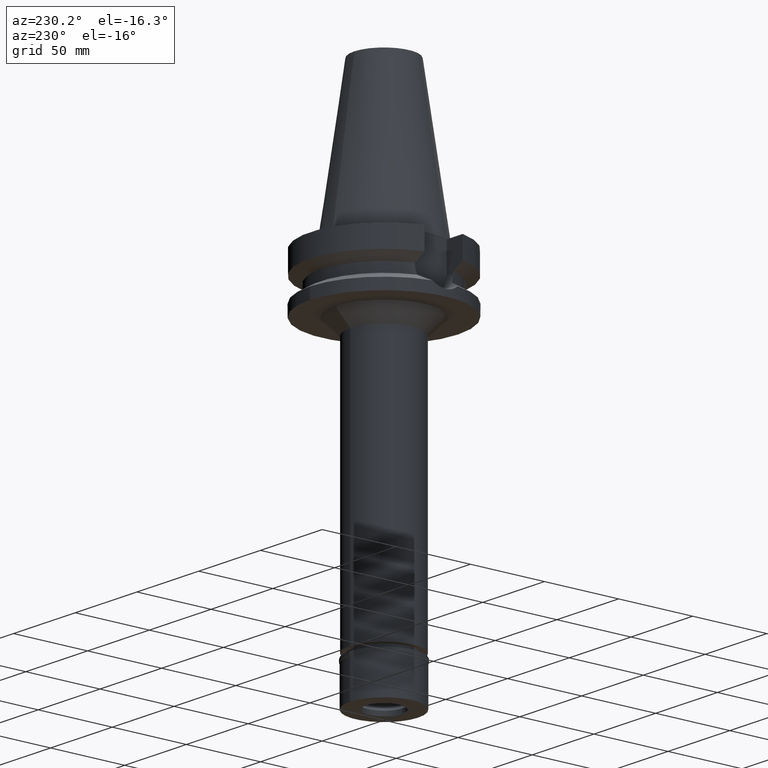
[diagram: clean part render]
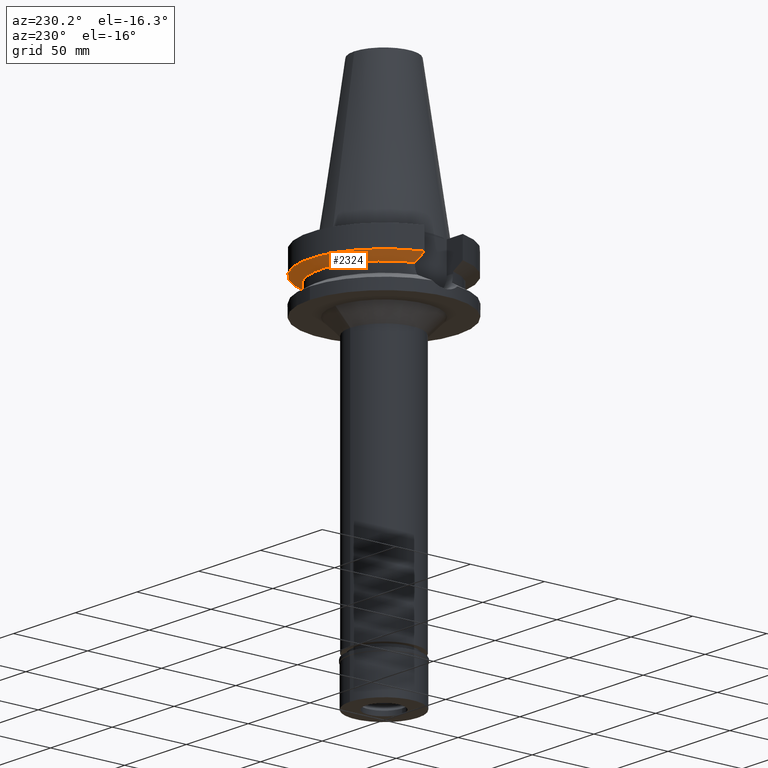
[diagram: same view with one face highlighted and labeled with its STEP entity id]
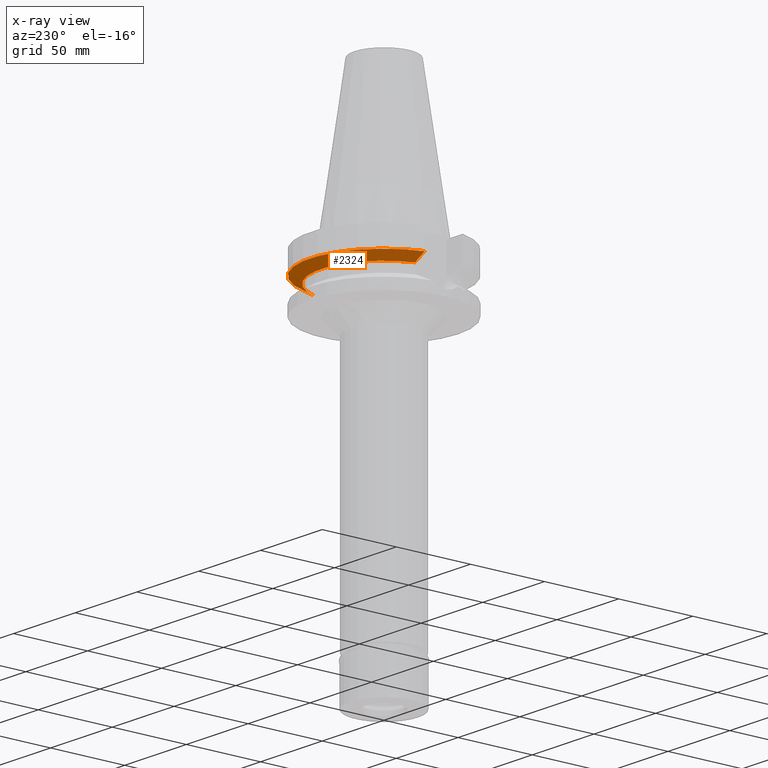
[diagram: x-ray of the same camera — body ghosted, the highlighted face saturated]
A machine part, auxiliary view. The second image highlights one B-rep face of the part: STEP entity #2324.
The next image is the same camera in x-ray: the body ghosted, the highlighted face saturated — about 0% of this face is hidden behind the body in this view.
In plain terms, the highlighted conical surface has half-angle 60 deg.
Its self-contained STEP definition (entity closure, byte-faithful):
#12 = EDGE_CURVE ( 'NONE', #2916, #1048, #2536, .T. ) ;
#53 = CARTESIAN_POINT ( 'NONE',  ( 0.0000000000000000000, 1.006319759053999930E-14, -15.66269223573000069 ) ) ;
#129 = ORIENTED_EDGE ( 'NONE', *, *, #12, .T. ) ;
#284 = VERTEX_POINT ( 'NONE', #1277 ) ;
#343 = DIRECTION ( 'NONE',  ( 0.0000000000000000000, 1.000000000000000000, 0.0000000000000000000 ) ) ;
#349 = AXIS2_PLACEMENT_3D ( 'NONE', #1258, #1748, #1698 ) ;
#403 = CARTESIAN_POINT ( 'NONE',  ( 48.32056912815000516, 12.85000385725999905, -15.66265768273000170 ) ) ;
#405 = CIRCLE ( 'NONE', #3011, 50.00000000000000000 ) ;
#492 = CARTESIAN_POINT ( 'NONE',  ( -45.51180301983914944, 12.85000771239541351, -17.22986482407244324 ) ) ;
#569 = ORIENTED_EDGE ( 'NONE', *, *, #717, .F. ) ;
#602 = EDGE_CURVE ( 'NONE', #1067, #284, #2184, .T. ) ;
#658 = CARTESIAN_POINT ( 'NONE',  ( 0.0000000000000000000, 1.006319759053999930E-14, -17.82775574519000017 ) ) ;
#677 = CARTESIAN_POINT ( 'NONE',  ( -42.90863232185251519, 12.84999314245379587, -18.67324368411542324 ) ) ;
#717 = EDGE_CURVE ( 'NONE', #2916, #284, #405, .T. ) ;
#760 = ORIENTED_EDGE ( 'NONE', *, *, #602, .T. ) ;
#790 = DIRECTION ( 'NONE',  ( 0.0000000000000000000, 0.0000000000000000000, 1.000000000000000000 ) ) ;
#1019 = DIRECTION ( 'NONE',  ( 0.0000000000000000000, 1.000000000000000000, 0.0000000000000000000 ) ) ;
#1048 = VERTEX_POINT ( 'NONE', #2321 ) ;
#1067 = VERTEX_POINT ( 'NONE', #2833 ) ;
#1162 = CARTESIAN_POINT ( 'NONE',  ( 42.90862489466591256, 12.84999313797018594, -18.67324780284967645 ) ) ;
#1180 = CARTESIAN_POINT ( 'NONE',  ( 45.51179901593025079, 12.85000770987397090, -17.22986705846993161 ) ) ;
#1258 = CARTESIAN_POINT ( 'NONE',  ( 0.0000000000000000000, 1.006319759053999930E-14, -19.99281925464999787 ) ) ;
#1277 = CARTESIAN_POINT ( 'NONE',  ( -48.32056912780999625, 12.85000385852000093, -15.66265767138999898 ) ) ;
#1352 = DIRECTION ( 'NONE',  ( 0.0000000000000000000, 0.0000000000000000000, 1.000000000000000000 ) ) ;
#1384 = FACE_OUTER_BOUND ( 'NONE', #1759, .T. ) ;
#1423 = CARTESIAN_POINT ( 'NONE',  ( -40.51083188481999997, 12.84999999999999964, -19.99281925464999787 ) ) ;
#1698 = DIRECTION ( 'NONE',  ( -0.9531960443486575674, 0.3023529411764863672, 0.0000000000000000000 ) ) ;
#1748 = DIRECTION ( 'NONE',  ( 0.0000000000000000000, 0.0000000000000000000, -1.000000000000000000 ) ) ;
#1759 = EDGE_LOOP ( 'NONE', ( #569, #129, #1821, #760 ) ) ;
#1768 = EDGE_CURVE ( 'NONE', #1067, #1048, #2038, .T. ) ;
#1821 = ORIENTED_EDGE ( 'NONE', *, *, #1768, .F. ) ;
#1926 = CARTESIAN_POINT ( 'NONE',  ( 40.51083297203000200, 12.84999657246999938, -19.99284555851999912 ) ) ;
#2038 = CIRCLE ( 'NONE', #349, 42.50000000000002132 ) ;
#2138 = CARTESIAN_POINT ( 'NONE',  ( 48.32056912815000516, 12.85000385725999905, -15.66265768273000170 ) ) ;
#2184 = B_SPLINE_CURVE_WITH_KNOTS ( 'NONE', 3,
 ( #1423, #677, #492, #2670 ),
 .UNSPECIFIED., .F., .F.,
 ( 4, 4 ),
 ( 0.0000000000000000000, 1.000000000000000000 ),
 .UNSPECIFIED. ) ;
#2198 = AXIS2_PLACEMENT_3D ( 'NONE', #658, #1352, #343 ) ;
#2321 = CARTESIAN_POINT ( 'NONE',  ( 40.51083297203000200, 12.84999657246999938, -19.99284555851999912 ) ) ;
#2324 = ADVANCED_FACE ( 'NONE', ( #1384 ), #2466, .T. ) ;
#2466 = CONICAL_SURFACE ( 'NONE', #2198, 46.25000000000000000, 1.047197551196400456 ) ;
#2536 = B_SPLINE_CURVE_WITH_KNOTS ( 'NONE', 3,
 ( #2138, #1180, #1162, #1926 ),
 .UNSPECIFIED., .F., .F.,
 ( 4, 4 ),
 ( 0.0000000000000000000, 1.000000000000000000 ),
 .UNSPECIFIED. ) ;
#2670 = CARTESIAN_POINT ( 'NONE',  ( -48.32056912780999625, 12.85000385852000093, -15.66265767138999898 ) ) ;
#2833 = CARTESIAN_POINT ( 'NONE',  ( -40.51083188481999997, 12.84999999999999964, -19.99281925464999787 ) ) ;
#2916 = VERTEX_POINT ( 'NONE', #403 ) ;
#3011 = AXIS2_PLACEMENT_3D ( 'NONE', #53, #790, #1019 ) ;